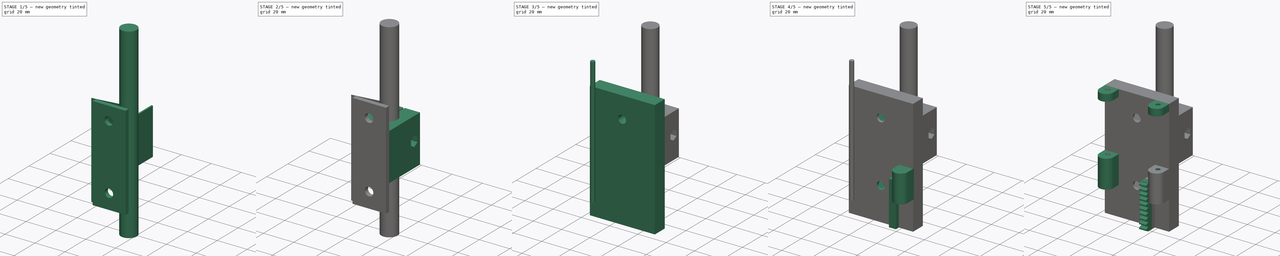
[diagram: build sequence overview — one tinted view per stage of 5, left to right]
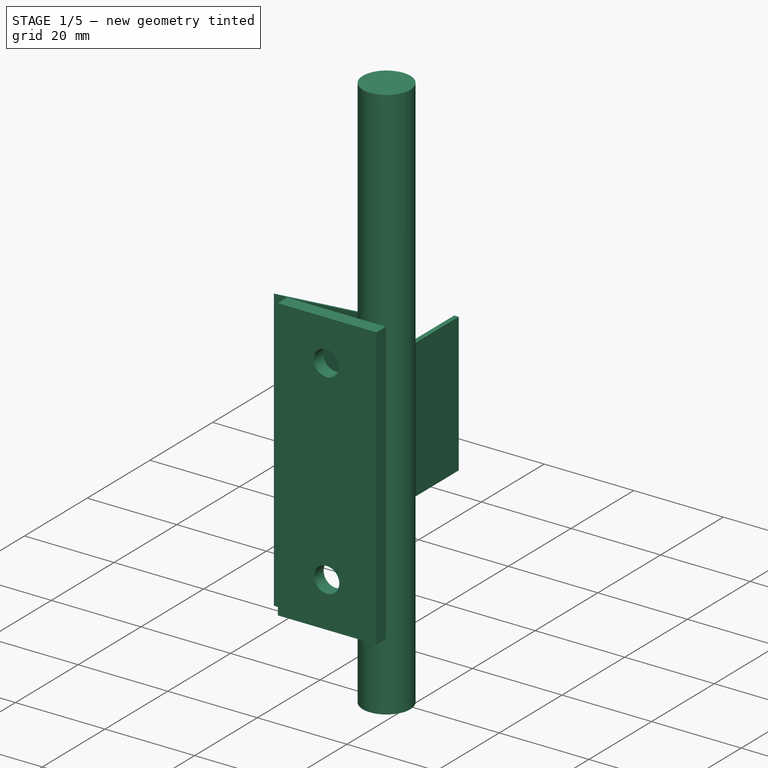
[diagram: stage 1 of 5 — iso view after this stage's code; geometry added in this stage tinted green]
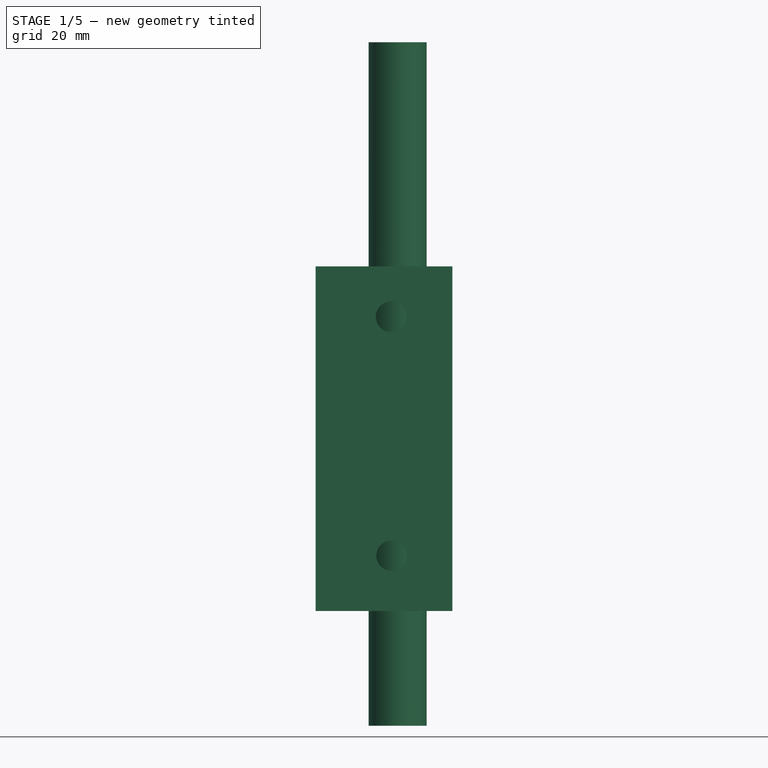
[diagram: stage 1 of 5 — front view after this stage's code; geometry added in this stage tinted green]
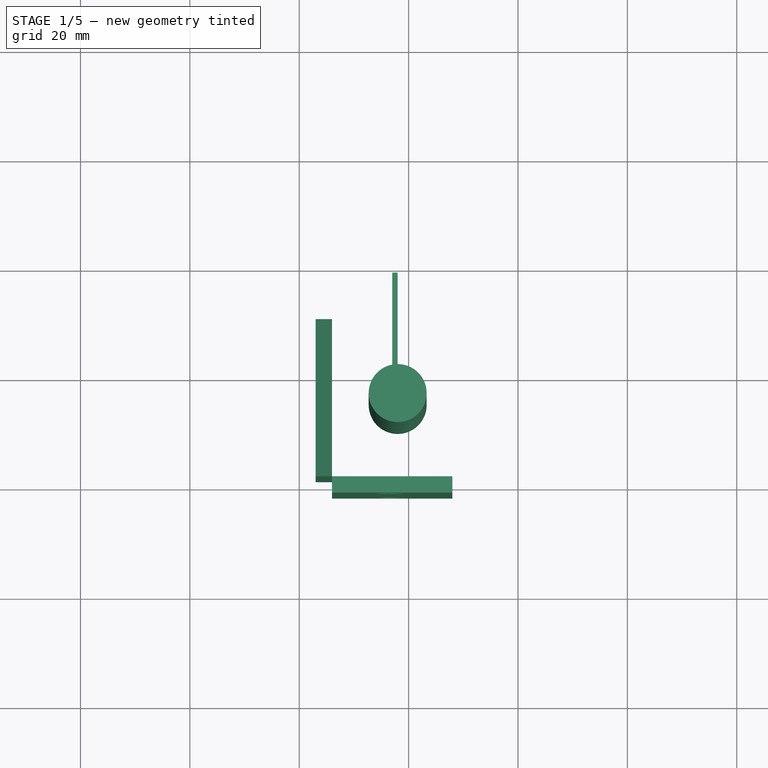
[diagram: stage 1 of 5 — top view after this stage's code; geometry added in this stage tinted green]
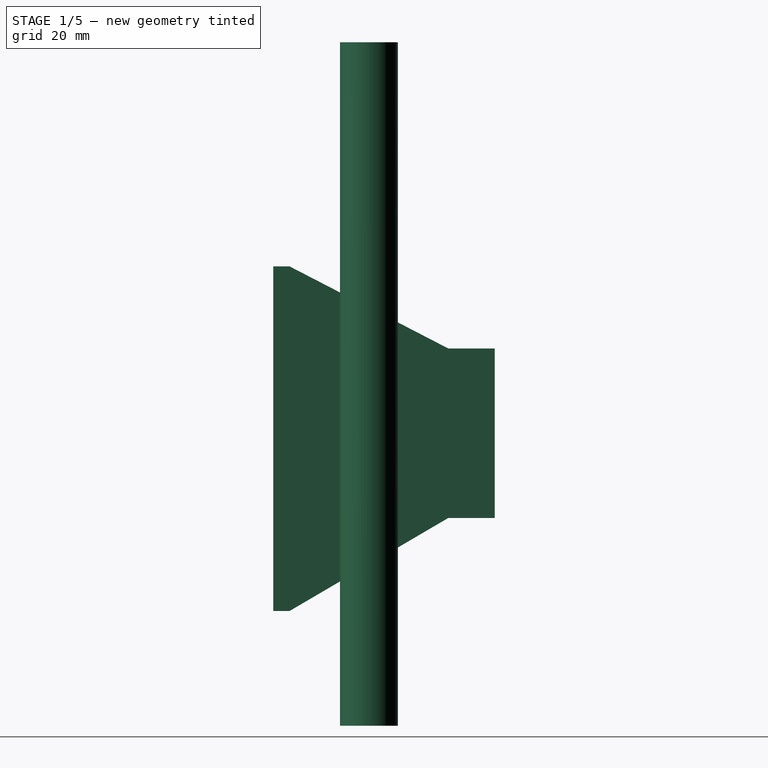
[diagram: stage 1 of 5 — right view after this stage's code; geometry added in this stage tinted green]
FCSTD DOCUMENT  (FreeCAD 0.18R4 (GitTag))
Label: Держатель фломастера
License: All rights reserved
LicenseURL: http://en.wikipedia.org/wiki/All_rights_reserved
objects: Part::Cut×12, Part::Cylinder×9, Part::Extrusion×8, Sketcher::SketchObject×5, Part::Box×5, Part::RegularPolygon×3, Part::MultiFuse×3, Part::FeaturePython×1, Part::Cone×1
note: 47 computed .brp shape members not serialized (recipe doc carries the construction recipe); baked Part::Feature solids carry a one-line shape summary decoded from their .brp

FEATURE [Part::Box] Box  label="Куб"
  AttacherType = Attacher::AttachEngine3D
  Height = 63
  Length = 22
  Placement = pos=(106,98,21) rot=(0,0,1;0rad)
  Width = 3
FEATURE [Part::Box] Box078  label="Куб078"
  AttacherType = Attacher::AttachEngine3D
  Height = 31
  Length = 1
  Placement = pos=(117,117.5,38) rot=(0,0,1;0rad)
  Width = 21
FEATURE [Part::Cylinder] Cylinder169  label="Цилиндр144"
  Angle = 360
  AttacherType = Attacher::AttachEngine3D
  Height = 21
  Placement = pos=(116.8,84.5,74.8) rot=(-1,0,0;1.5708rad)
  Radius = 2.8
FEATURE [Part::Cylinder] Cylinder170  label="Цилиндр145"
  Angle = 360
  AttacherType = Attacher::AttachEngine3D
  Height = 21
  Placement = pos=(116.9,84.5,31.1) rot=(-1,0,0;1.5708rad)
  Radius = 2.8
FEATURE [Part::Cut] Cut209
  Base = -> Box
  Tool = -> Cylinder169
FEATURE [Part::Cut] Cut210
  Base = -> Cut209
  Tool = -> Cylinder170
FEATURE [Part::Cylinder] Cylinder171  label="Цилиндр146"
  Angle = 360
  AttacherType = Attacher::AttachEngine3D
  Height = 125
  Placement = pos=(118,115.5,0) rot=(0,0,1;0rad)
  Radius = 5.3
FEATURE [Sketcher::SketchObject] Sketch
  Placement = pos=(0,0,0) rot=(0.57735,0.57735,0.57735;2.0944rad)
  sketch-geometry (4):
    g0: LineSegment StartX=101 StartY=84 StartZ=0 EndX=130 EndY=69 EndZ=0
    g1: LineSegment StartX=101 StartY=84 StartZ=0 EndX=101 EndY=21 EndZ=0
    g2: LineSegment StartX=130 StartY=69 StartZ=0 EndX=130 EndY=38 EndZ=0
    g3: LineSegment StartX=101 StartY=21 StartZ=0 EndX=130 EndY=38 EndZ=0
  constraints (12):
    c: DistanceX(g1) = 101
    c: DistanceY(g1) = 21
    c: Vertical(g1)
    c: DistanceY(g1,g1) = 63
    c: Coincident(g1,g0)
    c: Vertical(g2)
    c: DistanceX(g2) = 130
    c: DistanceY(g2) = 38
    c: DistanceY(g2,g2) = 31
    c: Coincident(g0,g2)
    c: Coincident(g3,g2)
    c: Coincident(g3,g1)
FEATURE [Part::Extrusion] Extrude
  Base = -> Sketch
  Dir = (1,0,0)
  DirMode = 0
  FaceMakerClass = Part::FaceMakerBullseye
  LengthFwd = 3
  LengthRev = 0
  Placement = pos=(103,0,0) rot=(0,0,1;0rad)
  Solid = true
  Symmetric = false
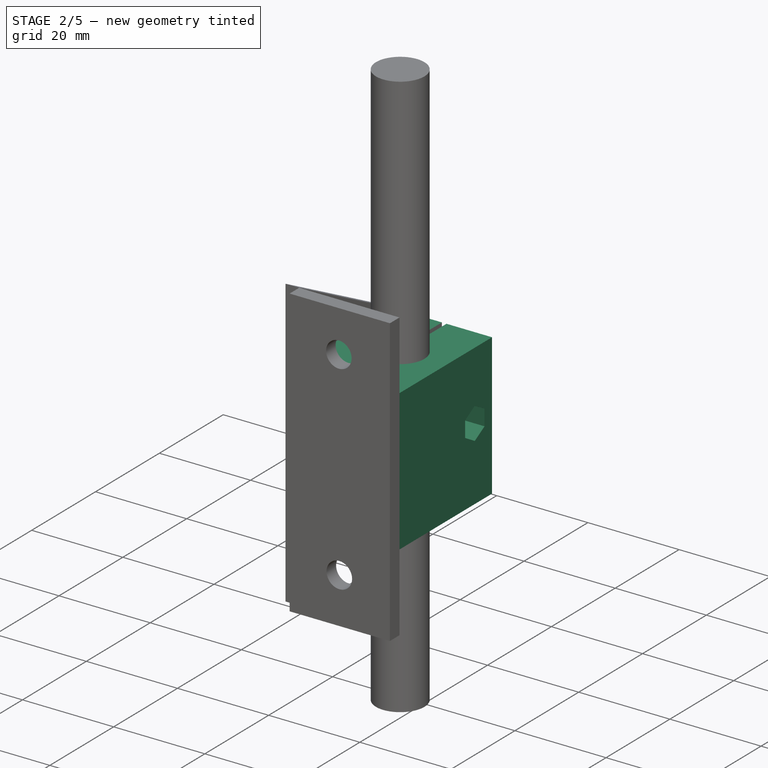
[diagram: stage 2 of 5 — iso view after this stage's code; geometry added in this stage tinted green]
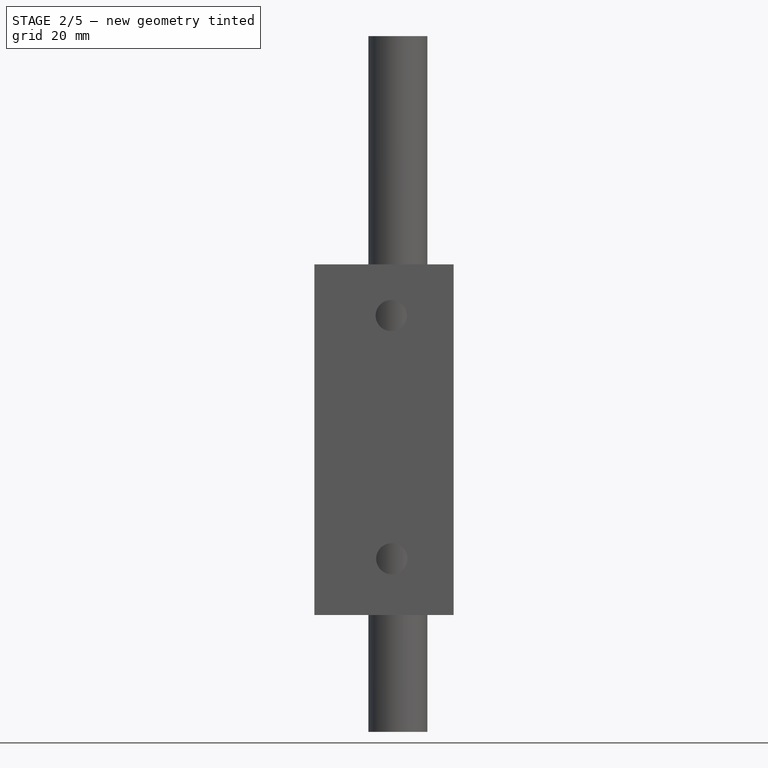
[diagram: stage 2 of 5 — front view after this stage's code; geometry added in this stage tinted green]
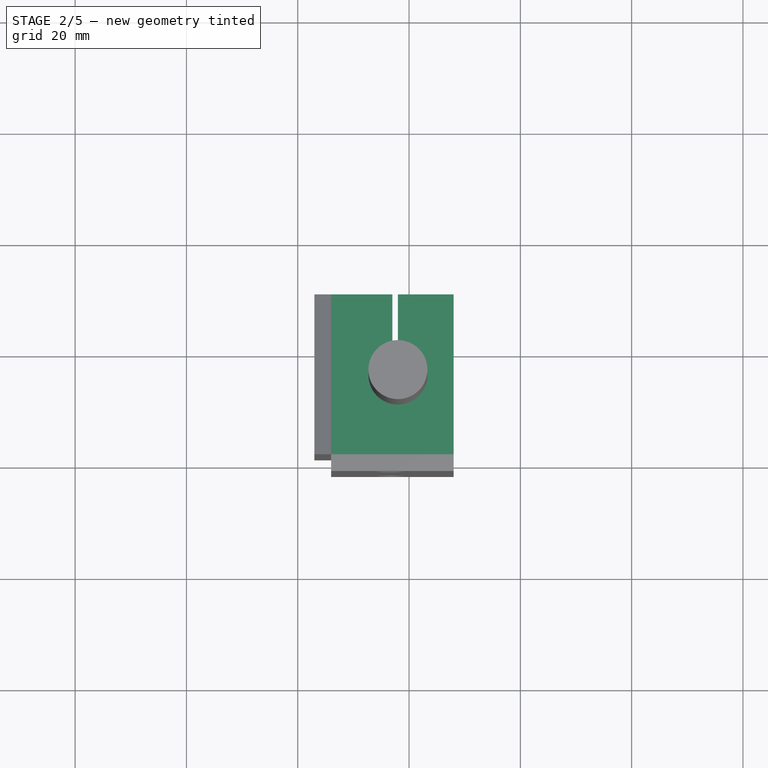
[diagram: stage 2 of 5 — top view after this stage's code; geometry added in this stage tinted green]
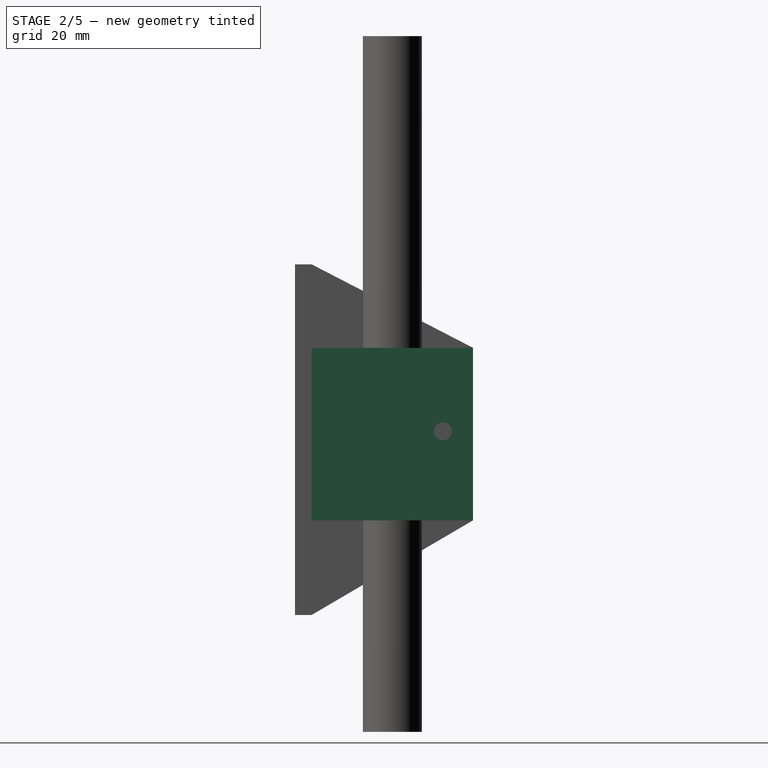
[diagram: stage 2 of 5 — right view after this stage's code; geometry added in this stage tinted green]
FEATURE [Part::Box] Box077  label="Куб077"
  AttacherType = Attacher::AttachEngine3D
  Height = 31
  Length = 22
  Placement = pos=(106,101,38) rot=(0,0,1;0rad)
  Width = 29
FEATURE [Part::Cylinder] Cylinder144  label="Цилиндр129"
  Angle = 360
  AttacherType = Attacher::AttachEngine3D
  Height = 21
  Radius = 1.6
FEATURE [Part::Cone] Cone015  label="Конус015"
  Angle = 360
  AttacherType = Attacher::AttachEngine3D
  Height = 3.5
  Placement = pos=(0,0,21) rot=(0,0,1;0rad)
  Radius1 = 1.6
  Radius2 = 3
FEATURE [Part::MultiFuse] Fusion
  Placement = pos=(130,124.6,54) rot=(0,-1,0;1.5708rad)
  Shapes = -> [Cylinder144,Cone015]
FEATURE [Part::RegularPolygon] RegularPolygon016  label="Правильный многоугольник016"
  AttacherType = Attacher::AttachEngine3D
  Circumradius = 3.5
  Polygon = 6
FEATURE [Part::Extrusion] Extrude065
  Base = -> RegularPolygon016
  Dir = (0,0,1)
  DirMode = 0
  FaceMakerClass = Part::FaceMakerBullseye
  LengthFwd = 5.5
  LengthRev = 0
  Placement = pos=(122.9,124.6,54) rot=(0.447214,0.774597,0.447214;1.82348rad)
  Solid = true
  Symmetric = false
FEATURE [Part::Cut] Cut
  Base = -> Box077
  Tool = -> Box078
FEATURE [Part::Cut] Cut207
  Base = -> Cut
  Tool = -> Fusion
FEATURE [Part::Cut] Cut208
  Base = -> Cut207
  Tool = -> Extrude065
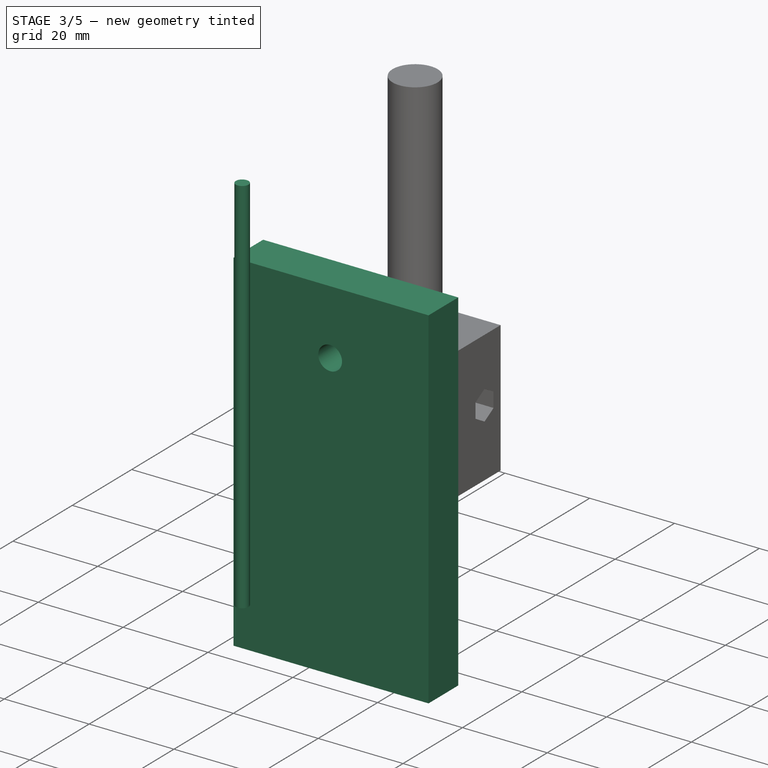
[diagram: stage 3 of 5 — iso view after this stage's code; geometry added in this stage tinted green]
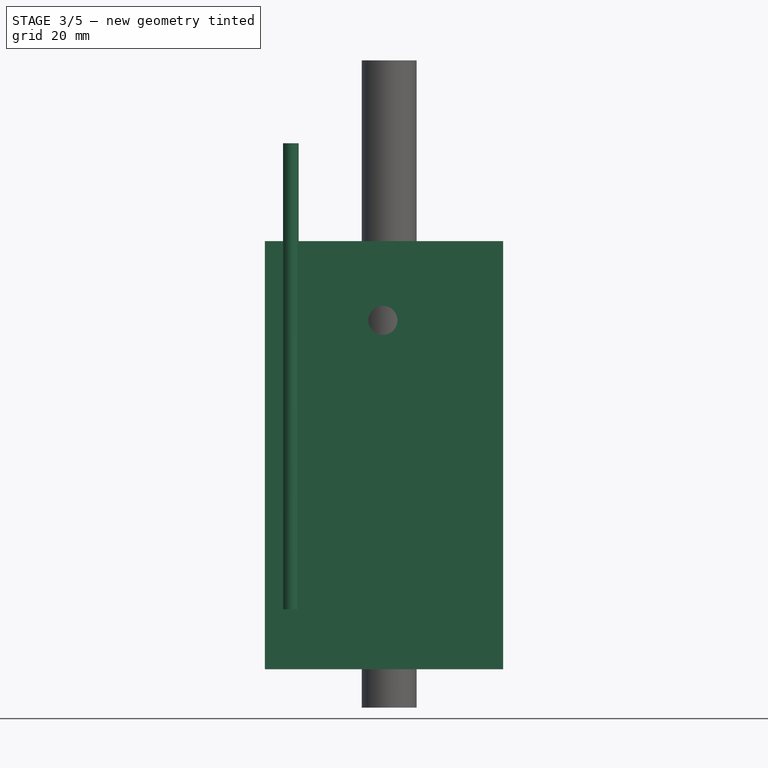
[diagram: stage 3 of 5 — front view after this stage's code; geometry added in this stage tinted green]
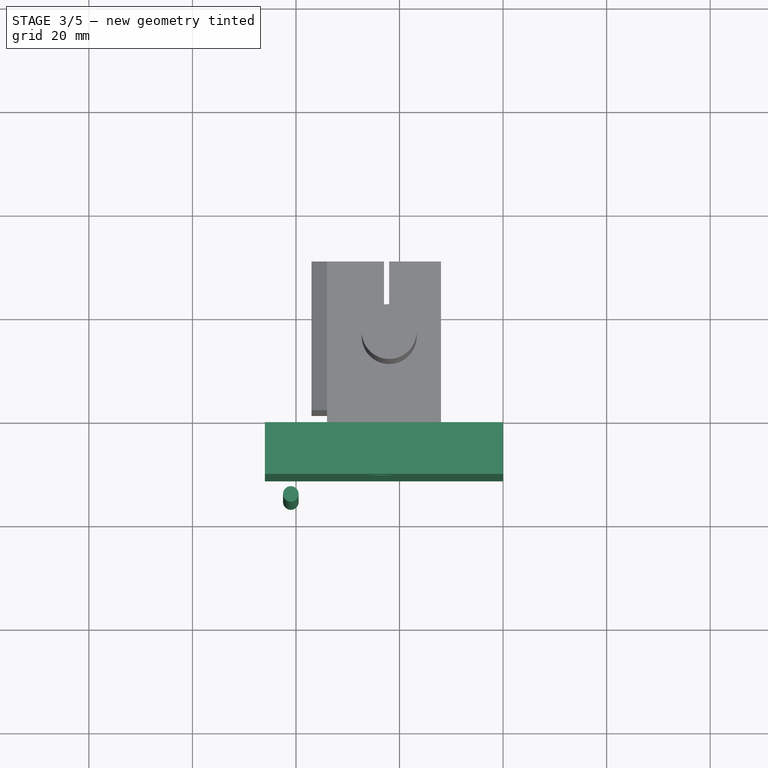
[diagram: stage 3 of 5 — top view after this stage's code; geometry added in this stage tinted green]
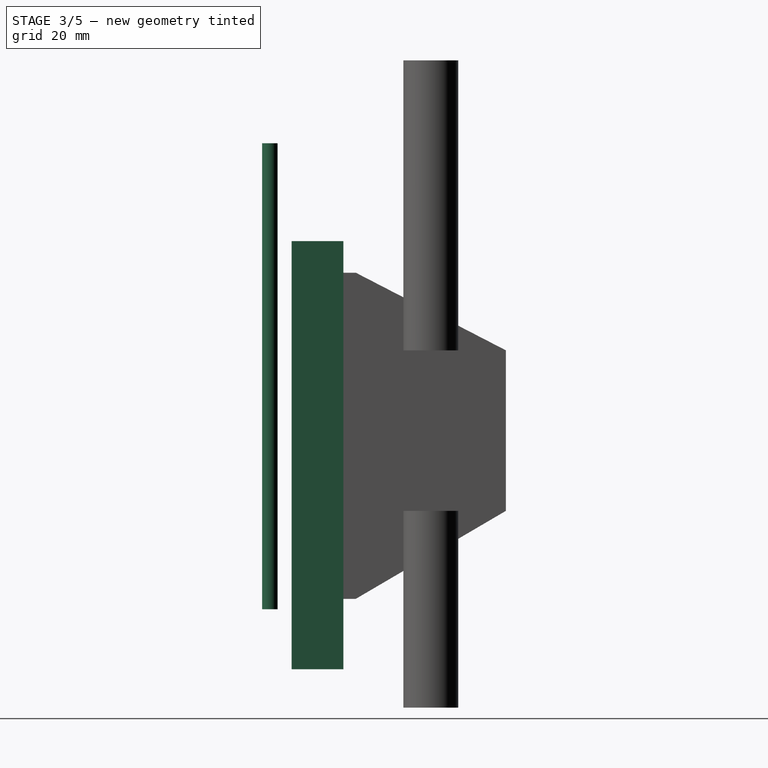
[diagram: stage 3 of 5 — right view after this stage's code; geometry added in this stage tinted green]
FEATURE [Part::Cylinder] Cylinder158  label="Цилиндр143"
  Angle = 360
  AttacherType = Attacher::AttachEngine3D
  Height = 32
  Placement = pos=(116.8,77.7,74.8) rot=(-1,0,0;1.5708rad)
  Radius = 2.8
FEATURE [Part::Box] Box075  label="Куб075"
  AttacherType = Attacher::AttachEngine3D
  Height = 82.7
  Length = 46
  Placement = pos=(94,88.6,7.4) rot=(0,0,1;0rad)
  Width = 10
FEATURE [Part::Cut] Cut201
  Base = -> Box075
  Tool = -> Cylinder158
FEATURE [Part::Cylinder] Cylinder168  label="Направляющая_3мм_004"
  Angle = 360
  AttacherType = Attacher::AttachEngine3D
  Height = 90
  Placement = pos=(99,84.4,19) rot=(0,0,1;0rad)
  Radius = 1.5
FEATURE [Part::Cylinder] Cylinder  label="Цилиндр"
  Angle = 360
  AttacherType = Attacher::AttachEngine3D
  Height = 125
  Placement = pos=(118,115.5,0) rot=(0,0,1;0rad)
  Radius = 5.3
FEATURE [Part::MultiFuse] Fusion100
  Shapes = -> [Cut210,Cut208]
FEATURE [Part::Cut] Cut211
  Base = -> Fusion100
  Tool = -> Cylinder171
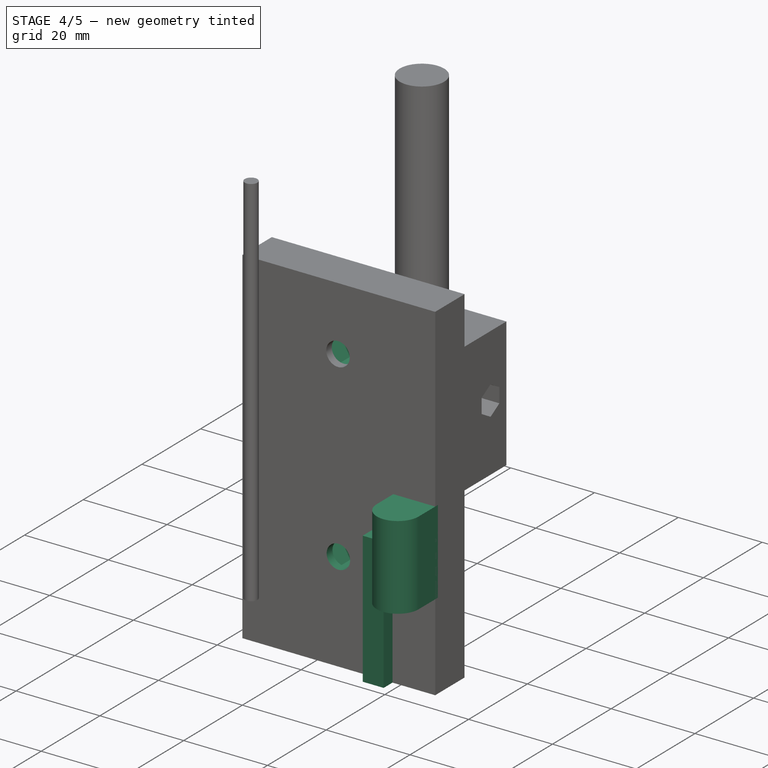
[diagram: stage 4 of 5 — iso view after this stage's code; geometry added in this stage tinted green]
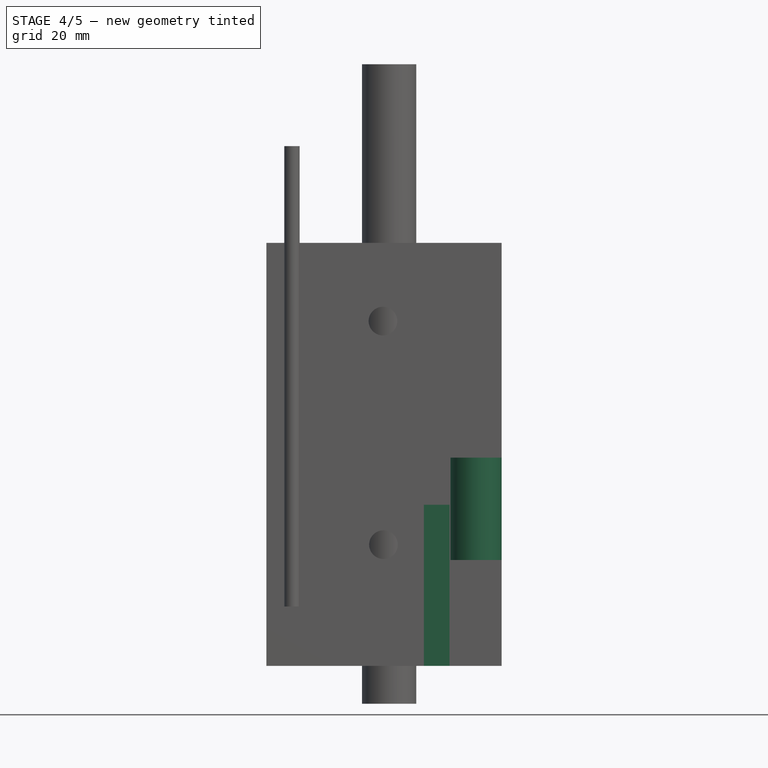
[diagram: stage 4 of 5 — front view after this stage's code; geometry added in this stage tinted green]
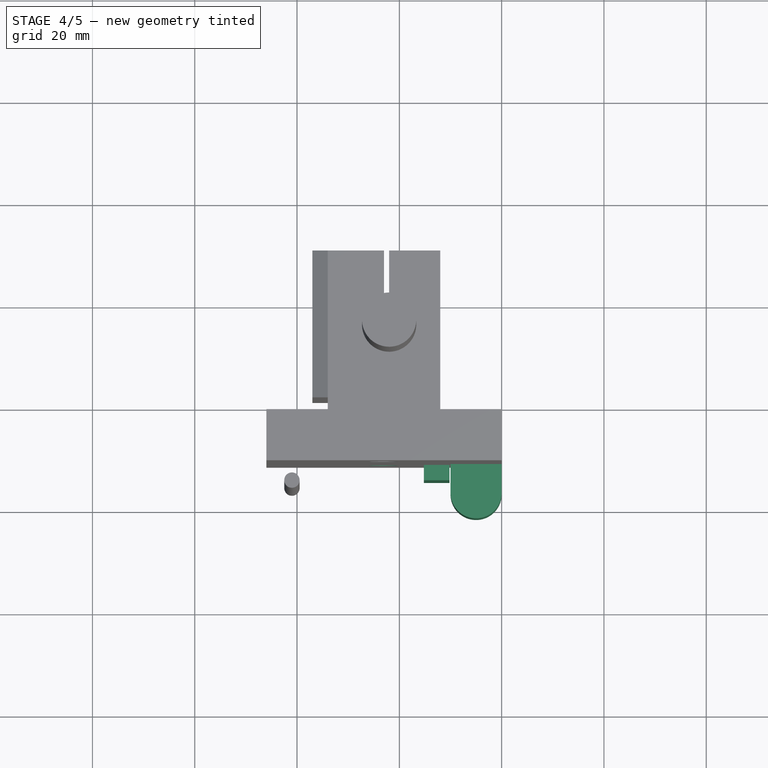
[diagram: stage 4 of 5 — top view after this stage's code; geometry added in this stage tinted green]
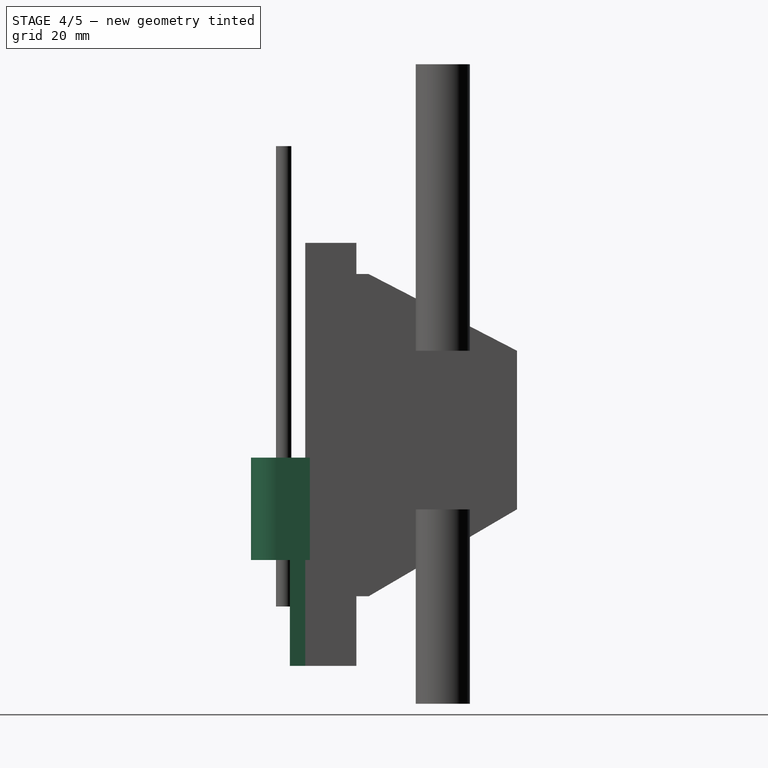
[diagram: stage 4 of 5 — right view after this stage's code; geometry added in this stage tinted green]
FEATURE [Part::Extrusion] Extrude062
  Base = -> Sketch052
  Dir = (0,0,1)
  DirMode = 0
  FaceMakerClass = Part::FaceMakerBullseye
  LengthFwd = 20
  LengthRev = 0
  Placement = pos=(36,0,28.1) rot=(0,0,1;0rad)
  Solid = true
  Symmetric = false
FEATURE [Part::Extrusion] Extrude063
  Base = -> RegularPolygon014
  Dir = (0,0,1)
  DirMode = 0
  FaceMakerClass = Part::FaceMakerBullseye
  LengthFwd = 5.5
  LengthRev = 0
  Placement = pos=(116.9,90.5,74.9) rot=(-1,0,0;1.5708rad)
  Solid = true
  Symmetric = false
FEATURE [Part::Box] Box076  label="Куб076"
  AttacherType = Attacher::AttachEngine3D
  Height = 31.5
  Length = 5
  Placement = pos=(124.8,85.6,7.4) rot=(0,0,1;0rad)
  Width = 4
FEATURE [Part::Extrusion] Extrude064
  Base = -> RegularPolygon015
  Dir = (0,0,1)
  DirMode = 0
  FaceMakerClass = Part::FaceMakerBullseye
  LengthFwd = 5.5
  LengthRev = 0
  Placement = pos=(116.9,90.6,31.1) rot=(-1,0,0;1.5708rad)
  Solid = true
  Symmetric = false
FEATURE [Part::Cylinder] Cylinder157  label="Цилиндр142"
  Angle = 360
  AttacherType = Attacher::AttachEngine3D
  Height = 24
  Placement = pos=(116.9,81.9,31.1) rot=(-1,0,0;1.5708rad)
  Radius = 2.8
FEATURE [Part::Cut] Cut202
  Base = -> Cut201
  Tool = -> Cylinder157
FEATURE [Part::Cut] Cut203
  Base = -> Cut202
  Tool = -> Extrude063
FEATURE [Part::Cut] Cut204
  Base = -> Cut203
  Tool = -> Extrude064
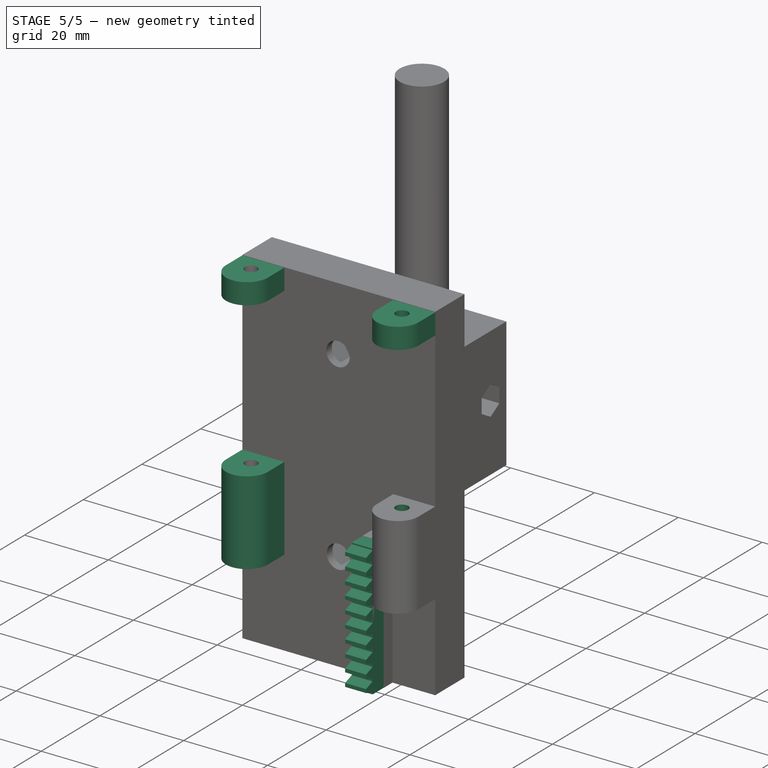
[diagram: stage 5 of 5 — iso view after this stage's code; geometry added in this stage tinted green]
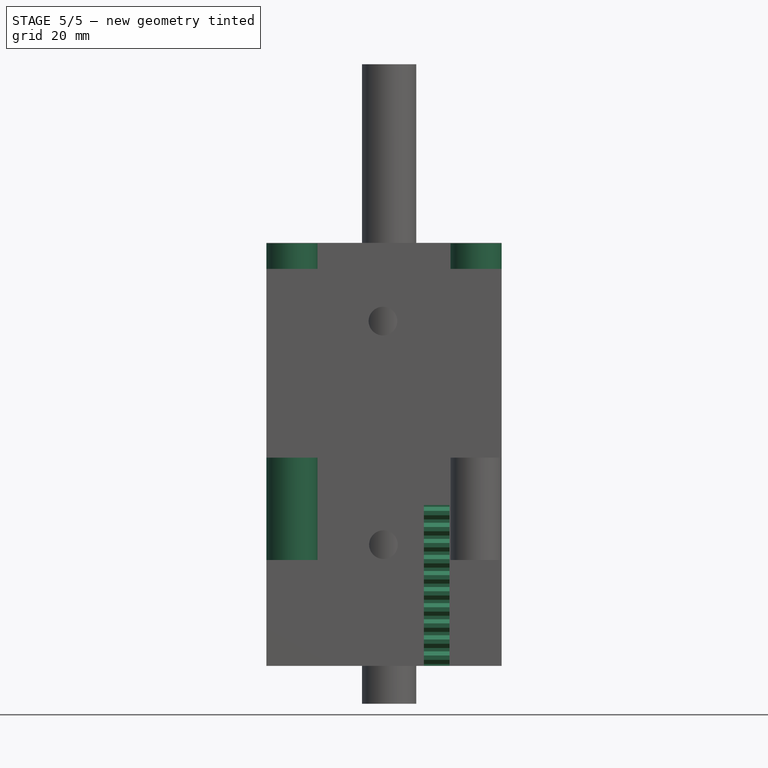
[diagram: stage 5 of 5 — front view after this stage's code; geometry added in this stage tinted green]
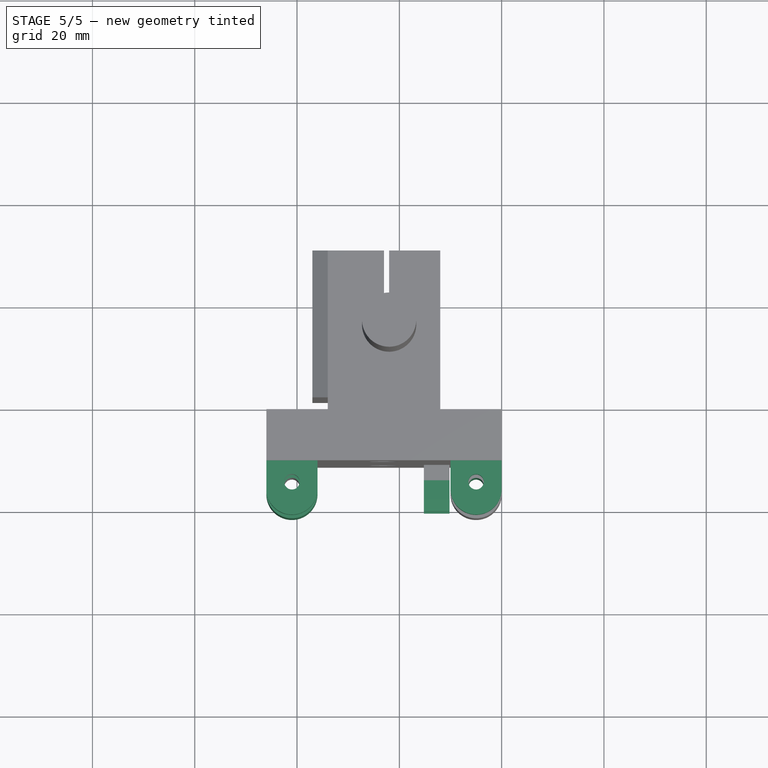
[diagram: stage 5 of 5 — top view after this stage's code; geometry added in this stage tinted green]
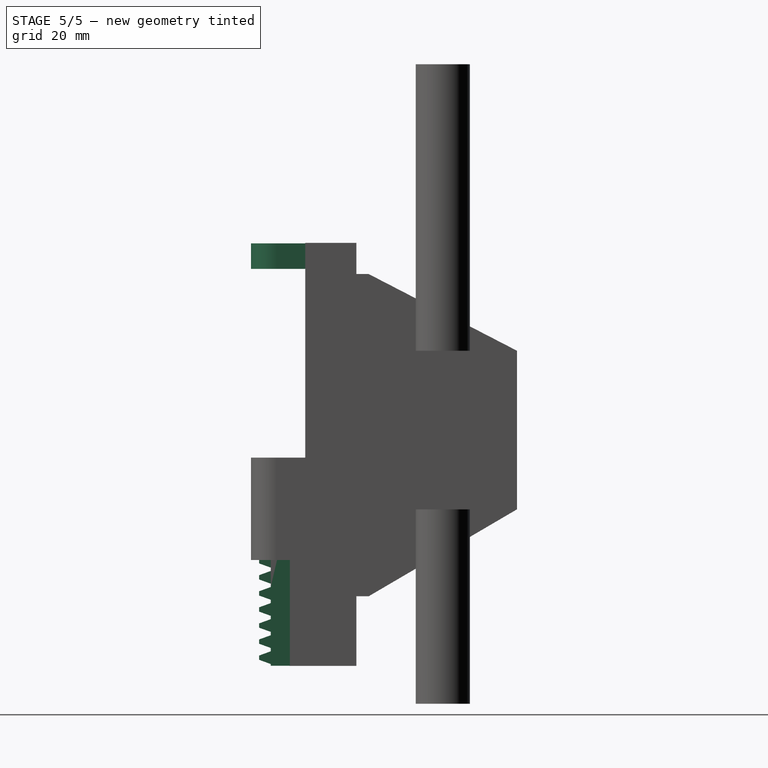
[diagram: stage 5 of 5 — right view after this stage's code; geometry added in this stage tinted green]
FEATURE [Part::RegularPolygon] RegularPolygon014  label="Правильный многоугольник014"
  AttacherType = Attacher::AttachEngine3D
  Circumradius = 4.8
  Polygon = 6
FEATURE [Part::RegularPolygon] RegularPolygon015  label="Правильный многоугольник015"
  AttacherType = Attacher::AttachEngine3D
  Circumradius = 4.8
  Polygon = 6
FEATURE [Part::FeaturePython] InvoluteRack  # WARN: FeaturePython — macro-defined, semantics opaque (R4)
  Placement = pos=(129.8,80.6,9) rot=(0.57735,-0.57735,-0.57735;2.0944rad)
  add_endings = true
  beta = 0
  clearance = 0.25
  double_helix = false
  head = 0
  height = 5
  module = 1
  pressure_angle = 20
  properties_from_tool = true
  simplified = false
  teeth = 10
  thickness = 5
  transverse_pitch = 3.14159
FEATURE [Sketcher::SketchObject] Sketch049
  sketch-geometry (4):
    g0: ArcOfCircle CenterX=99 CenterY=83 CenterZ=0 NormalX=0 NormalY=0 NormalZ=1 AngleXU=0 Radius=5 StartAngle=3.14159 EndAngle=6.28319
    g1: LineSegment StartX=94 StartY=83 StartZ=0 EndX=94 EndY=89.5 EndZ=0
    g2: LineSegment StartX=104 StartY=83 StartZ=0 EndX=104 EndY=89.5 EndZ=0
    g3: LineSegment StartX=94 StartY=89.5 StartZ=0 EndX=104 EndY=89.5 EndZ=0
  constraints (13):
    c: DistanceX(g0) = 94
    c: DistanceY(g0) = 83
    c: Vertical(g1)
    c: Coincident(g1,g0)
    c: DistanceY(g1,g1) = 6.5
    c: Vertical(g2)
    c: DistanceY(g0,g0) = 0
    c: Radius(g0) = 5
    c: DistanceY(g0,g0) = 0
    c: Coincident(g2,g0)
    c: Equal(g2,g1)
    c: Coincident(g3,g2)
    c: Coincident(g3,g1)
FEATURE [Sketcher::SketchObject] Sketch050
  sketch-geometry (4):
    g0: ArcOfCircle CenterX=99 CenterY=83 CenterZ=0 NormalX=0 NormalY=0 NormalZ=1 AngleXU=0 Radius=5 StartAngle=3.14159 EndAngle=6.28319
    g1: LineSegment StartX=94 StartY=83 StartZ=0 EndX=94 EndY=89.5 EndZ=0
    g2: LineSegment StartX=104 StartY=83 StartZ=0 EndX=104 EndY=89.5 EndZ=0
    g3: LineSegment StartX=94 StartY=89.5 StartZ=0 EndX=104 EndY=89.5 EndZ=0
  constraints (13):
    c: DistanceX(g0) = 94
    c: DistanceY(g0) = 83
    c: Vertical(g1)
    c: Coincident(g1,g0)
    c: DistanceY(g1,g1) = 6.5
    c: Vertical(g2)
    c: DistanceY(g0,g0) = 0
    c: Radius(g0) = 5
    c: DistanceY(g0,g0) = 0
    c: Coincident(g2,g0)
    c: Equal(g2,g1)
    c: Coincident(g3,g2)
    c: Coincident(g3,g1)
FEATURE [Sketcher::SketchObject] Sketch051
  sketch-geometry (4):
    g0: ArcOfCircle CenterX=99 CenterY=83 CenterZ=0 NormalX=0 NormalY=0 NormalZ=1 AngleXU=0 Radius=5 StartAngle=3.14159 EndAngle=6.28319
    g1: LineSegment StartX=94 StartY=83 StartZ=0 EndX=94 EndY=89.5 EndZ=0
    g2: LineSegment StartX=104 StartY=83 StartZ=0 EndX=104 EndY=89.5 EndZ=0
    g3: LineSegment StartX=94 StartY=89.5 StartZ=0 EndX=104 EndY=89.5 EndZ=0
  constraints (13):
    c: DistanceX(g0) = 94
    c: DistanceY(g0) = 83
    c: Vertical(g1)
    c: Coincident(g1,g0)
    c: DistanceY(g1,g1) = 6.5
    c: Vertical(g2)
    c: DistanceY(g0,g0) = 0
    c: Radius(g0) = 5
    c: DistanceY(g0,g0) = 0
    c: Coincident(g2,g0)
    c: Equal(g2,g1)
    c: Coincident(g3,g2)
    c: Coincident(g3,g1)
FEATURE [Sketcher::SketchObject] Sketch052
  sketch-geometry (4):
    g0: ArcOfCircle CenterX=99 CenterY=83 CenterZ=0 NormalX=0 NormalY=0 NormalZ=1 AngleXU=0 Radius=5 StartAngle=3.14159 EndAngle=6.28319
    g1: LineSegment StartX=94 StartY=83 StartZ=0 EndX=94 EndY=89.5 EndZ=0
    g2: LineSegment StartX=104 StartY=83 StartZ=0 EndX=104 EndY=89.5 EndZ=0
    g3: LineSegment StartX=94 StartY=89.5 StartZ=0 EndX=104 EndY=89.5 EndZ=0
  constraints (13):
    c: DistanceX(g0) = 94
    c: DistanceY(g0) = 83
    c: Vertical(g1)
    c: Coincident(g1,g0)
    c: DistanceY(g1,g1) = 6.5
    c: Vertical(g2)
    c: DistanceY(g0,g0) = 0
    c: Radius(g0) = 5
    c: DistanceY(g0,g0) = 0
    c: Coincident(g2,g0)
    c: Equal(g2,g1)
    c: Coincident(g3,g2)
    c: Coincident(g3,g1)
FEATURE [Part::Extrusion] Extrude059
  Base = -> Sketch049
  Dir = (0,0,1)
  DirMode = 0
  FaceMakerClass = Part::FaceMakerBullseye
  LengthFwd = 20
  LengthRev = 0
  Placement = pos=(0,0,28.1) rot=(0,0,1;0rad)
  Solid = true
  Symmetric = false
FEATURE [Part::Extrusion] Extrude060
  Base = -> Sketch050
  Dir = (0,0,1)
  DirMode = 0
  FaceMakerClass = Part::FaceMakerBullseye
  LengthFwd = 5
  LengthRev = 0
  Placement = pos=(0,0,85) rot=(0,0,1;0rad)
  Solid = true
  Symmetric = false
FEATURE [Part::Extrusion] Extrude061
  Base = -> Sketch051
  Dir = (0,0,1)
  DirMode = 0
  FaceMakerClass = Part::FaceMakerBullseye
  LengthFwd = 5
  LengthRev = 0
  Placement = pos=(36,0,85) rot=(0,0,1;0rad)
  Solid = true
  Symmetric = false
FEATURE [Part::Cylinder] Cylinder167  label="Направляющая_3мм_003"
  Angle = 360
  AttacherType = Attacher::AttachEngine3D
  Height = 90
  Placement = pos=(135,84.4,19) rot=(0,0,1;0rad)
  Radius = 1.5
FEATURE [Part::MultiFuse] Fusion099
  Shapes = -> [Cut204,Extrude062,Extrude061,Extrude060,Extrude059,InvoluteRack,Box076]
FEATURE [Part::Cut] Cut205
  Base = -> Fusion099
  Tool = -> Cylinder167
FEATURE [Part::Cut] Cut206
  Base = -> Cut205
  Tool = -> Cylinder168
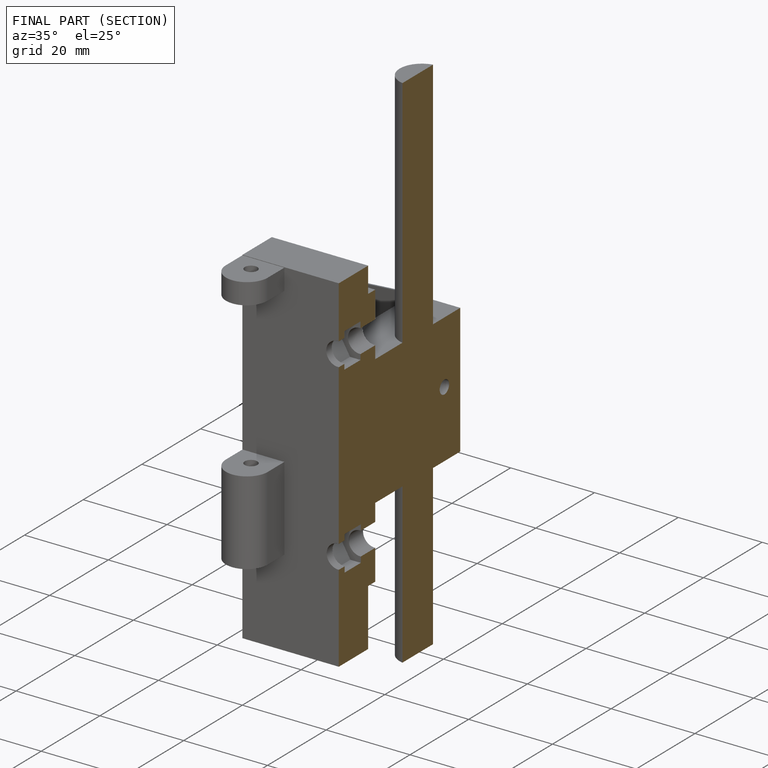
[diagram: finished part — half-section view (interior)]
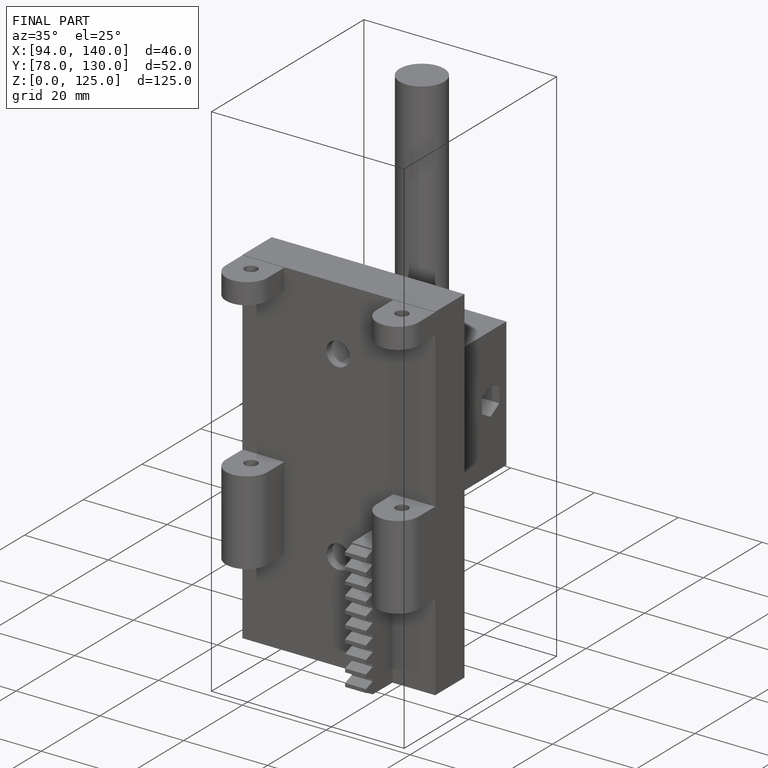
[diagram: finished part — iso view with bounding-box wireframe]
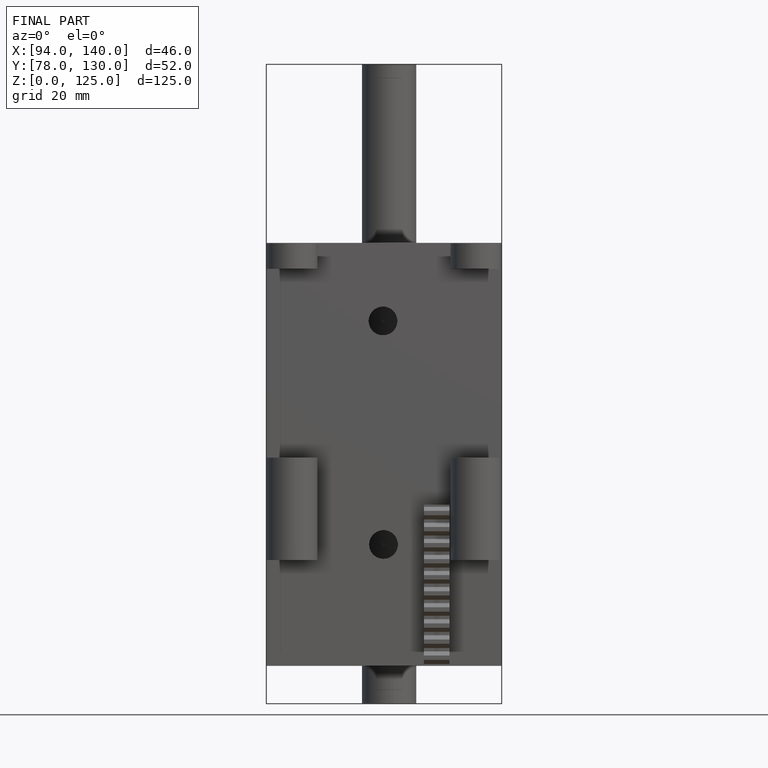
[diagram: finished part — front view with bounding-box wireframe]
